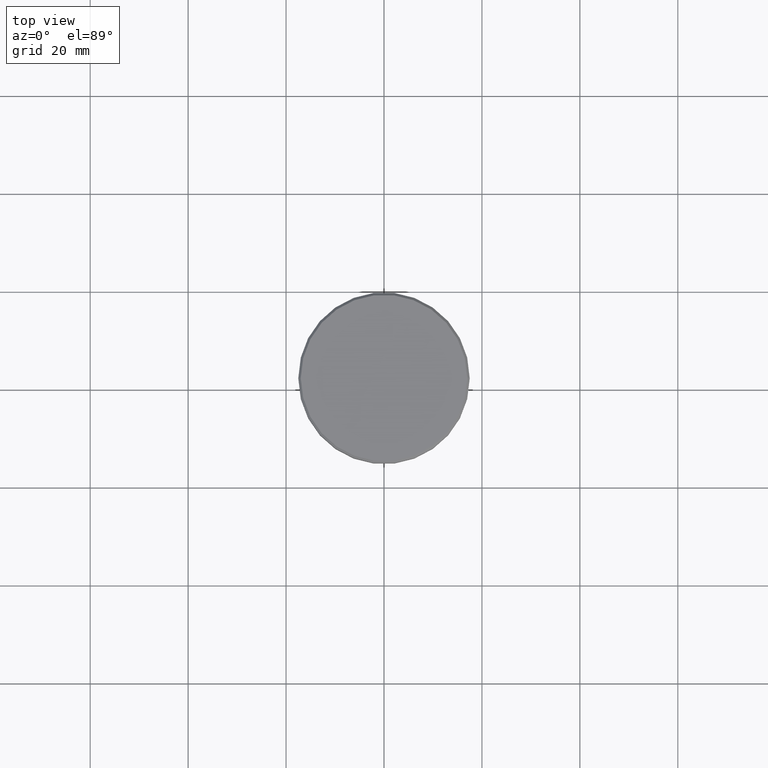
[diagram: clean part render]
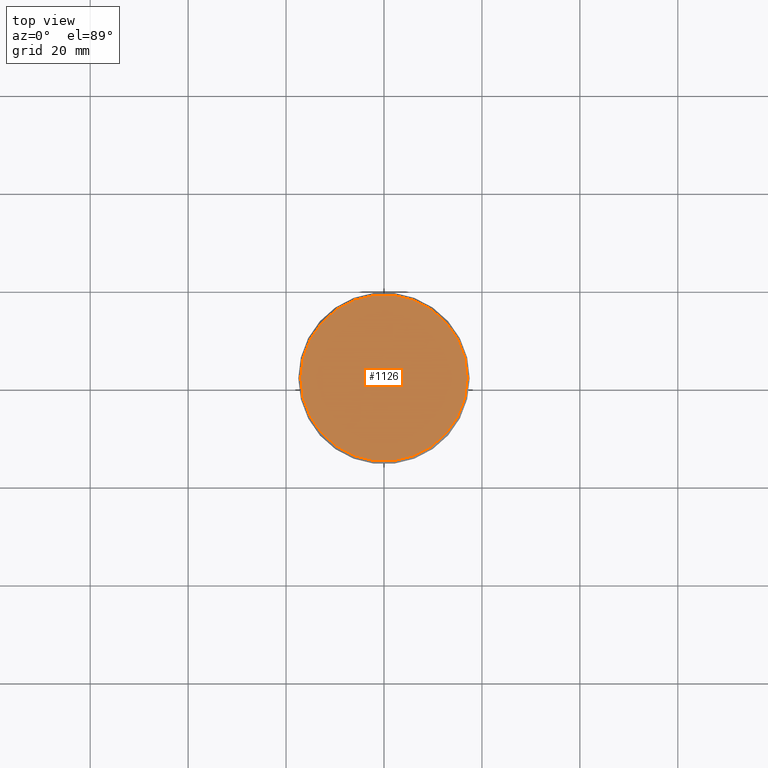
[diagram: same view with one face highlighted and labeled with its STEP entity id]
A machine part, top view. The second image highlights one B-rep face of the part: STEP entity #1126.
In plain terms, the highlighted planar face has unit normal (0, -0, 1).
Its self-contained STEP definition (entity closure, byte-faithful):
#71 = CARTESIAN_POINT ( 'NONE',  ( 0.000000000000000000, 0.000000000000000000, 0.000000000000000000 ) ) ;
#74 = EDGE_CURVE ( 'NONE', #516, #352, #580, .T. ) ;
#119 = AXIS2_PLACEMENT_3D ( 'NONE', #71, #1065, #799 ) ;
#133 = DIRECTION ( 'NONE',  ( 1.000000000000000000, 0.000000000000000000, 0.000000000000000000 ) ) ;
#134 = CARTESIAN_POINT ( 'NONE',  ( -16.99999999999998579, 0.000000000000000000, 0.000000000000000000 ) ) ;
#352 = VERTEX_POINT ( 'NONE', #134 ) ;
#416 = CARTESIAN_POINT ( 'NONE',  ( 0.000000000000000000, 0.000000000000000000, 0.000000000000000000 ) ) ;
#427 = DIRECTION ( 'NONE',  ( 0.000000000000000000, -0.000000000000000000, 1.000000000000000000 ) ) ;
#440 = FACE_OUTER_BOUND ( 'NONE', #859, .T. ) ;
#516 = VERTEX_POINT ( 'NONE', #983 ) ;
#540 = AXIS2_PLACEMENT_3D ( 'NONE', #609, #427, #904 ) ;
#580 = CIRCLE ( 'NONE', #943, 16.99999999999998579 ) ;
#609 = CARTESIAN_POINT ( 'NONE',  ( 0.000000000000000000, 0.000000000000000000, 0.000000000000000000 ) ) ;
#614 = PLANE ( 'NONE',  #540 ) ;
#759 = EDGE_CURVE ( 'NONE', #352, #516, #940, .T. ) ;
#764 = ORIENTED_EDGE ( 'NONE', *, *, #759, .T. ) ;
#797 = ORIENTED_EDGE ( 'NONE', *, *, #74, .T. ) ;
#799 = DIRECTION ( 'NONE',  ( 1.000000000000000000, 0.000000000000000000, 0.000000000000000000 ) ) ;
#859 = EDGE_LOOP ( 'NONE', ( #764, #797 ) ) ;
#904 = DIRECTION ( 'NONE',  ( 1.000000000000000000, 0.000000000000000000, 0.000000000000000000 ) ) ;
#940 = CIRCLE ( 'NONE', #119, 16.99999999999998579 ) ;
#943 = AXIS2_PLACEMENT_3D ( 'NONE', #416, #948, #133 ) ;
#948 = DIRECTION ( 'NONE',  ( -0.000000000000000000, -0.000000000000000000, 1.000000000000000000 ) ) ;
#983 = CARTESIAN_POINT ( 'NONE',  ( 16.99999999999998579, 2.112515728529183278E-15, 0.000000000000000000 ) ) ;
#1065 = DIRECTION ( 'NONE',  ( -0.000000000000000000, -0.000000000000000000, 1.000000000000000000 ) ) ;
#1126 = ADVANCED_FACE ( 'NONE', ( #440 ), #614, .T. ) ;